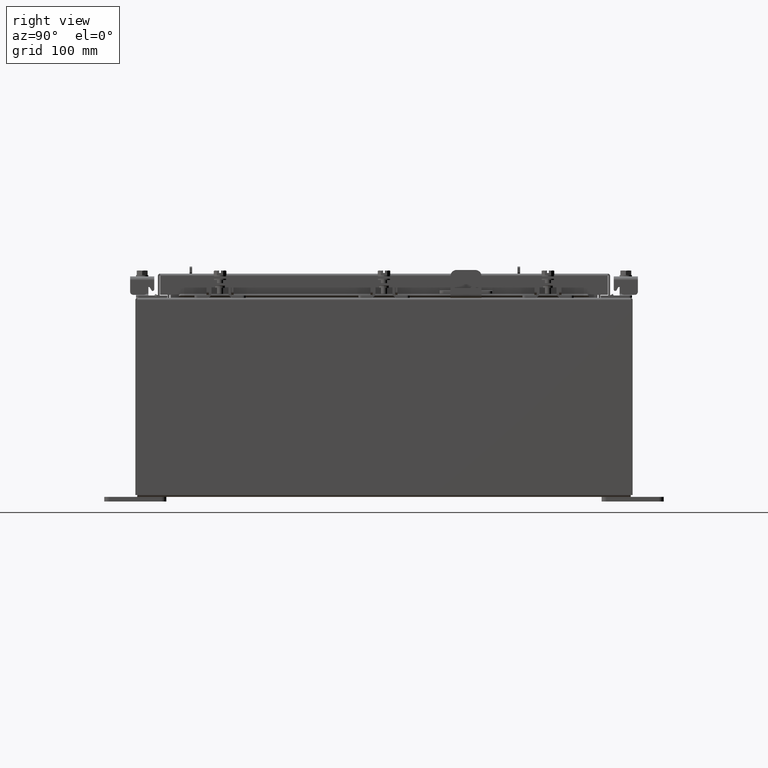
[diagram: clean part render]
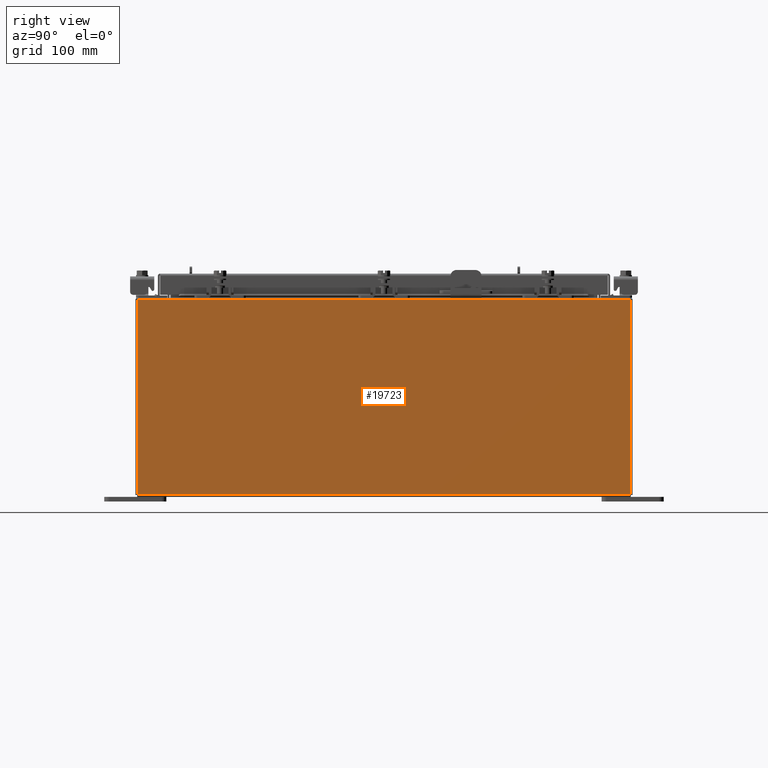
[diagram: same view with one face highlighted and labeled with its STEP entity id]
A machine part, right view. The second image highlights one B-rep face of the part: STEP entity #19723.
In plain terms, the highlighted planar face has unit normal (-1, 0, 0).
Its self-contained STEP definition (entity closure, byte-faithful):
#151 = CARTESIAN_POINT ( 'NONE',  ( 8.000000000000001800, -9.925300000000001800, -2.783070143545468100E-014 ) ) ;
#2204 = DIRECTION ( 'NONE',  ( 3.446996320220387700E-015, 0.0000000000000000000, 1.000000000000000000 ) ) ;
#2637 = VECTOR ( 'NONE', #7051, 39.37007874015748100 ) ;
#2998 = ORIENTED_EDGE ( 'NONE', *, *, #14299, .T. ) ;
#3968 = CARTESIAN_POINT ( 'NONE',  ( 8.000000000000001800, 9.925299999999998200, -2.783070143545468100E-014 ) ) ;
#4157 = DIRECTION ( 'NONE',  ( 3.446996320220386900E-015, 0.0000000000000000000, 1.000000000000000000 ) ) ;
#5802 = DIRECTION ( 'NONE',  ( -0.0000000000000000000, -1.000000000000000000, -0.0000000000000000000 ) ) ;
#6153 = LINE ( 'NONE', #16221, #20028 ) ;
#6570 = CARTESIAN_POINT ( 'NONE',  ( 8.000000000000001800, -9.925300000000001800, 0.01299999999999985200 ) ) ;
#7051 = DIRECTION ( 'NONE',  ( -3.446996320220387700E-015, 0.0000000000000000000, -1.000000000000000000 ) ) ;
#7750 = CARTESIAN_POINT ( 'NONE',  ( 8.000000000000030200, 9.925299999999991100, 7.837599999999999200 ) ) ;
#8443 = VERTEX_POINT ( 'NONE', #14867 ) ;
#8641 = EDGE_CURVE ( 'NONE', #14615, #8443, #13892, .T. ) ;
#9251 = CARTESIAN_POINT ( 'NONE',  ( 8.000000000000001800, 0.0000000000000000000, -2.783070143545468100E-014 ) ) ;
#9255 = VECTOR ( 'NONE', #11802, 39.37007874015748100 ) ;
#9690 = VERTEX_POINT ( 'NONE', #7750 ) ;
#9897 = CARTESIAN_POINT ( 'NONE',  ( 8.000000000000001800, 9.925299999999996500, 0.01299999999999985200 ) ) ;
#10115 = ORIENTED_EDGE ( 'NONE', *, *, #16009, .T. ) ;
#10524 = AXIS2_PLACEMENT_3D ( 'NONE', #9251, #14567, #4157 ) ;
#10629 = ORIENTED_EDGE ( 'NONE', *, *, #8641, .F. ) ;
#11075 = PLANE ( 'NONE',  #10524 ) ;
#11476 = FACE_OUTER_BOUND ( 'NONE', #16613, .T. ) ;
#11802 = DIRECTION ( 'NONE',  ( -0.0000000000000000000, -1.000000000000000000, -0.0000000000000000000 ) ) ;
#12351 = VERTEX_POINT ( 'NONE', #14692 ) ;
#13243 = ORIENTED_EDGE ( 'NONE', *, *, #15342, .T. ) ;
#13772 = LINE ( 'NONE', #3968, #17853 ) ;
#13892 = LINE ( 'NONE', #6570, #9255 ) ;
#14299 = EDGE_CURVE ( 'NONE', #9690, #12351, #6153, .T. ) ;
#14567 = DIRECTION ( 'NONE',  ( -1.000000000000000000, 0.0000000000000000000, 3.446996320220386900E-015 ) ) ;
#14615 = VERTEX_POINT ( 'NONE', #9897 ) ;
#14692 = CARTESIAN_POINT ( 'NONE',  ( 8.000000000000030200, -9.925300000000001800, 7.837599999999999200 ) ) ;
#14867 = CARTESIAN_POINT ( 'NONE',  ( 8.000000000000001800, -9.925300000000001800, 0.01299999999999985200 ) ) ;
#15342 = EDGE_CURVE ( 'NONE', #12351, #8443, #15972, .T. ) ;
#15972 = LINE ( 'NONE', #151, #2637 ) ;
#16009 = EDGE_CURVE ( 'NONE', #14615, #9690, #13772, .T. ) ;
#16221 = CARTESIAN_POINT ( 'NONE',  ( 8.000000000000030200, 9.925299999999992900, 7.837599999999999200 ) ) ;
#16613 = EDGE_LOOP ( 'NONE', ( #2998, #13243, #10629, #10115 ) ) ;
#17853 = VECTOR ( 'NONE', #2204, 39.37007874015748100 ) ;
#19723 = ADVANCED_FACE ( 'NONE', ( #11476 ), #11075, .F. ) ;
#20028 = VECTOR ( 'NONE', #5802, 39.37007874015748100 ) ;